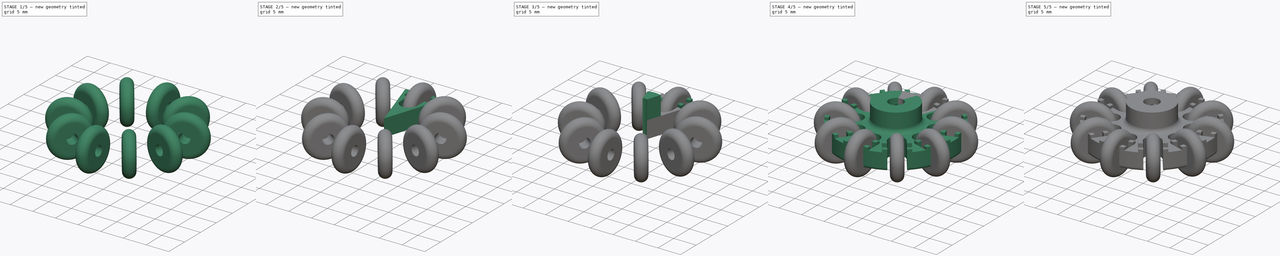
[diagram: build sequence overview — one tinted view per stage of 5, left to right]
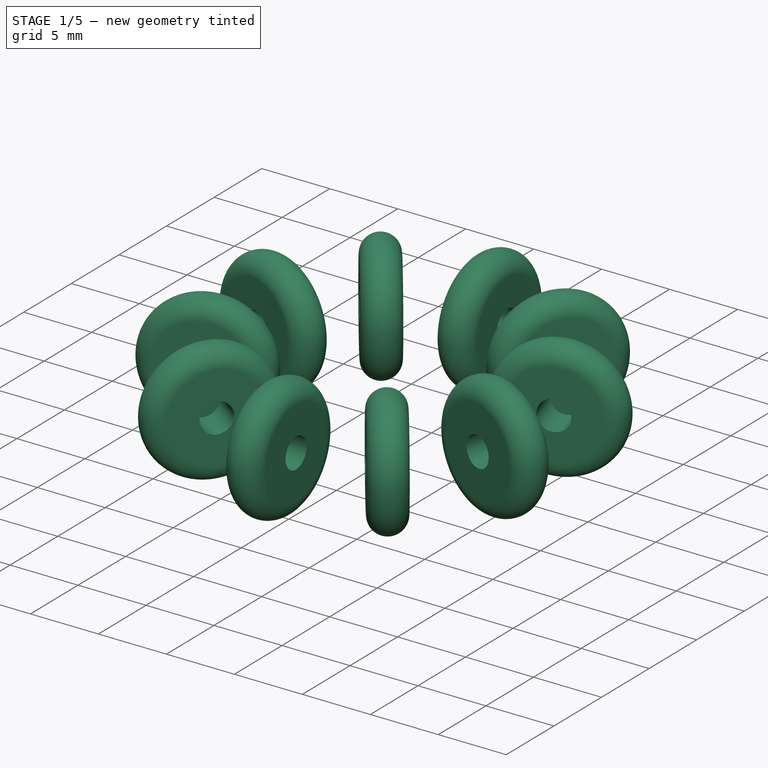
[diagram: stage 1 of 5 — iso view after this stage's code; geometry added in this stage tinted green]
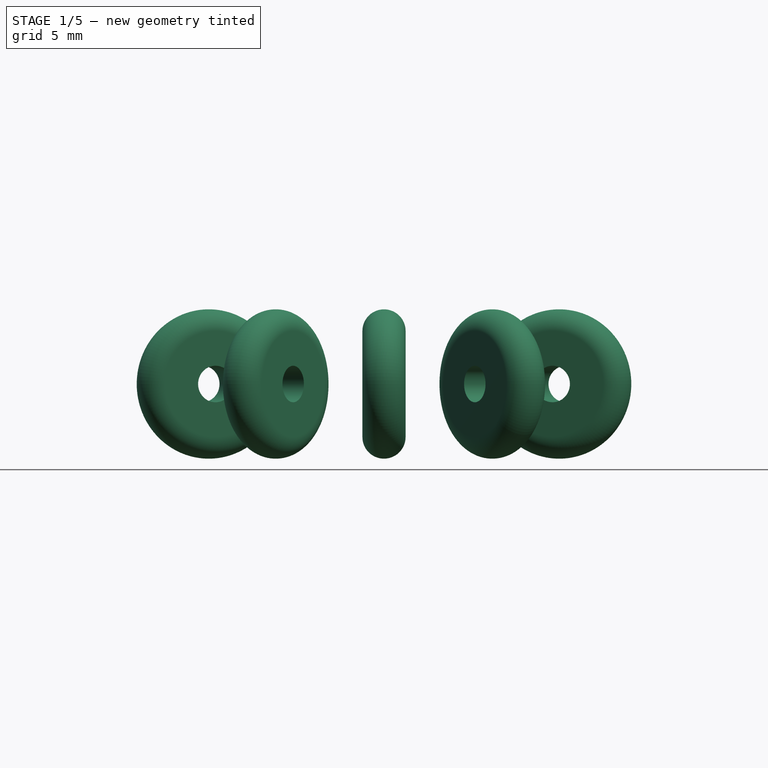
[diagram: stage 1 of 5 — front view after this stage's code; geometry added in this stage tinted green]
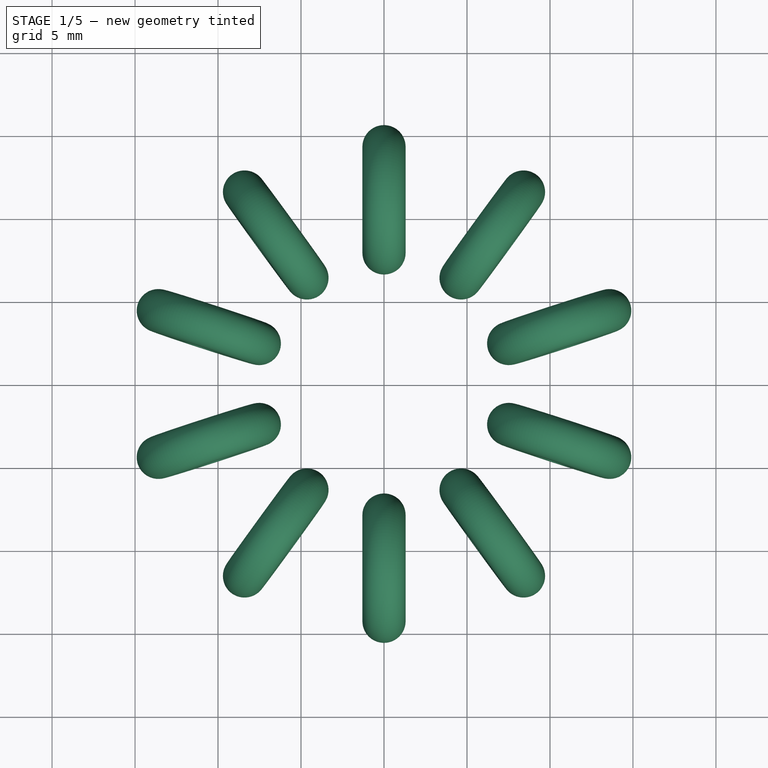
[diagram: stage 1 of 5 — top view after this stage's code; geometry added in this stage tinted green]
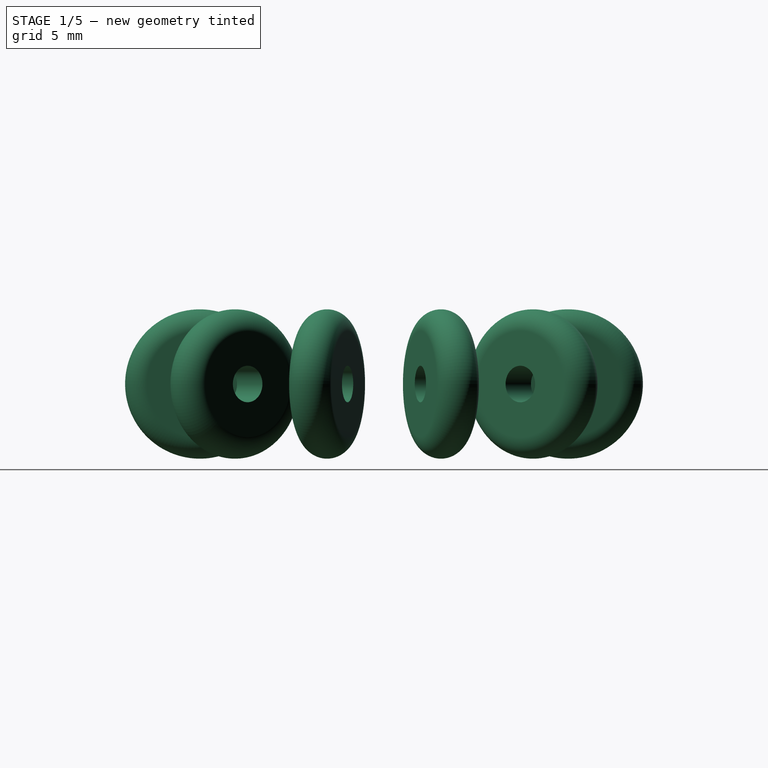
[diagram: stage 1 of 5 — right view after this stage's code; geometry added in this stage tinted green]
FCSTD DOCUMENT  (FreeCAD 1.0R39319 (Git))
Label: paolo_omniwheel_new_25-11-20
License: All rights reserved
LicenseURL: http://en.wikipedia.org/wiki/All_rights_reserved
objects: Sketcher::SketchObject×12, PartDesign::Pocket×5, PartDesign::ShapeBinder×3, PartDesign::Pad×3, PartDesign::Body×3, PartDesign::Revolution×2, PartDesign::Fillet×2, Spreadsheet::Sheet×1, PartDesign::Groove×1, PartDesign::PolarPattern×1, PartDesign::Plane×1, PartDesign::Chamfer×1, App::Part×1, Part::FeaturePython×1
note: 76 computed .brp shape members not serialized (recipe doc carries the construction recipe); baked Part::Feature solids carry a one-line shape summary decoded from their .brp

FEATURE [PartDesign::Body] Body  label="Spicchio ruota"
  AllowCompound = false
  Group = -> [ShapeBinder,Sketch001,Pad,Sketch004,Pocket001,Sketch005,Groove,Sketch013,Pad003,Sketch014,Pocket002,Sketch016,Pad004,Fillet,PolarPattern,DatumPlane,Sketch017,Pocket003,Fillet001,Chamfer]
  Origin = -> Origin001
  Tip = -> Chamfer
FEATURE [App::Part] Part
  Group = -> [Sketch,Body,Body001]
  Origin = -> Origin
FEATURE [PartDesign::ShapeBinder] ShapeBinder002
  Support = -> [Sketch]
  TraceSupport = false
FEATURE [Sketcher::SketchObject] Sketch018
  ArcFitTolerance = 1e-06
  AttachmentSupport = -> [XY_Plane003]
  ExternalGeometry = -> [ShapeBinder002]
  FullyConstrained = true
  MakeInternals = false
  MapMode = 5
  sketch-geometry (4):
    g0: LineSegment StartX=-1.3 StartY=14.2992 StartZ=0 EndX=-1.3 EndY=11.0992 EndZ=0
    g1: LineSegment StartX=-1.3 StartY=11.0992 StartZ=0 EndX=1.3 EndY=11.0992 EndZ=0
    g2: LineSegment StartX=1.3 StartY=11.0992 StartZ=0 EndX=1.3 EndY=14.2992 EndZ=0
    g3: ArcOfCircle CenterX=-4.323e-13 CenterY=14.2992 CenterZ=0 NormalX=0 NormalY=0 NormalZ=1 AngleXU=0 Radius=1.3 StartAngle=-1.217e-13 EndAngle=3.14159
  constraints (10):
    c: Tangent(g-6,g0) = -1.5708
    c: Coincident(g0,g1)
    c: PointOnObject(g1,g-5)
    c: Horizontal(g1)
    c: Coincident(g1,g2)
    c: Coincident(g2,g-6)
    c: Vertical(g2)
    c: Coincident(g3,g-6)
    c: Coincident(g3,g0)
    c: Coincident(g3,g2)
FEATURE [PartDesign::Revolution] Revolution001
  Angle = 360
  Angle2 = 60
  Axis = (1,0,0)
  Base = (-1.3,11.0992,0)
  Profile = -> Sketch018
  ReferenceAxis = -> Sketch018 [Edge2]
  Suppressed = false
  Type = 0
FEATURE [Sketcher::SketchObject] Sketch019
  ArcFitTolerance = 1e-06
  AttachmentSupport = -> [Revolution001]
  ExternalGeometry = -> [Revolution001]
  FullyConstrained = true
  MakeInternals = false
  MapMode = 5
  Placement = pos=(-1.3,0,0) rot=(0.57735,-0.57735,-0.57735;2.0944rad)
  expr: Constraints[1] = Spreadsheet.diametro_foro_ruotine
  sketch-geometry (1):
    g0: Circle CenterX=-11.0992 CenterY=0 CenterZ=0 NormalX=0 NormalY=0 NormalZ=1 AngleXU=0 Radius=1.1
  constraints (2):
    c: Coincident(g0,g-3)
    c: Diameter(g0) = 2.2
FEATURE [PartDesign::Pocket] Pocket004  label="UnaRuotina"
  BaseFeature = -> Revolution001
  Direction = (1,0,0)
  Length = 5
  Length2 = 5
  Profile = -> Sketch019
  ReferenceAxis = -> Sketch019 [N_Axis]
  Suppressed = false
  Type = 1
FEATURE [PartDesign::Body] Body002  label="nocciolina001"
  AllowCompound = false
  Group = -> [ShapeBinder002,Sketch018,Revolution001,Sketch019,Pocket004]
  Origin = -> Origin003
  Tip = -> Pocket004
FEATURE [Part::FeaturePython] Array  # Draft array (typed FeaturePython)
  Angle = 360
  ArrayType = 1
  Axis = (0,0,1)
  Base = -> Pocket004
  Center = (0,0,0)
  Count = 10
  Fuse = true
  IntervalAxis = (0,0,0)
  IntervalX = (50,0,0)
  IntervalY = (0,50,0)
  IntervalZ = (0,0,50)
  NumberCircles = 3
  NumberPolar = 10
  NumberX = 2
  NumberY = 2
  NumberZ = 1
  RadialDistance = 50
  Symmetry = 1
  TangentialDistance = 25
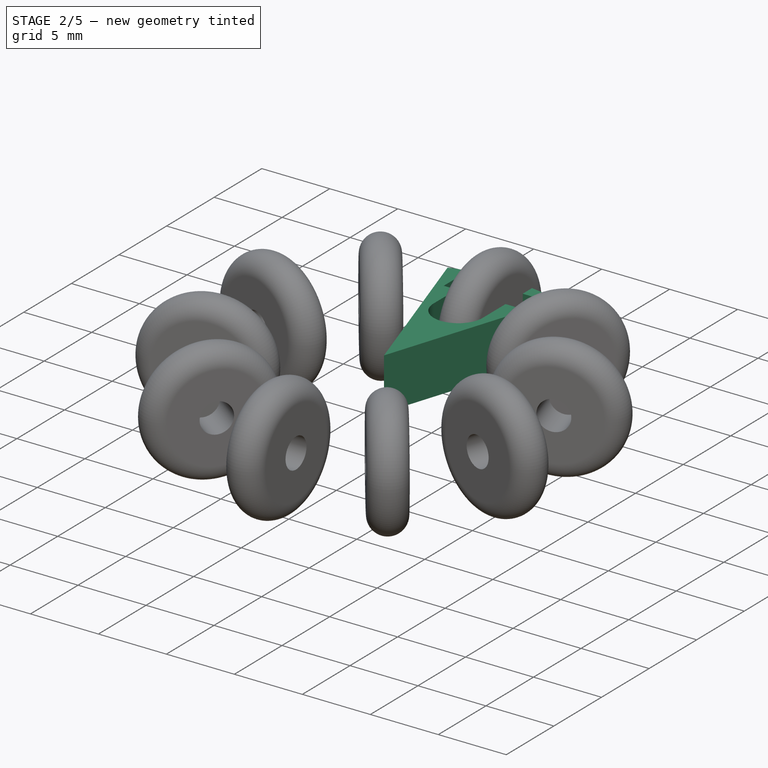
[diagram: stage 2 of 5 — iso view after this stage's code; geometry added in this stage tinted green]
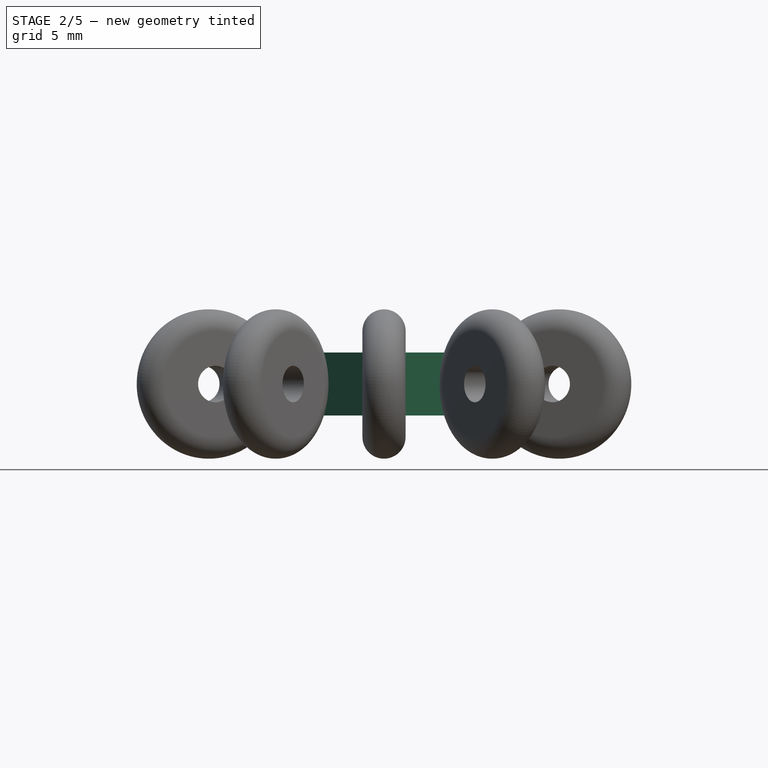
[diagram: stage 2 of 5 — front view after this stage's code; geometry added in this stage tinted green]
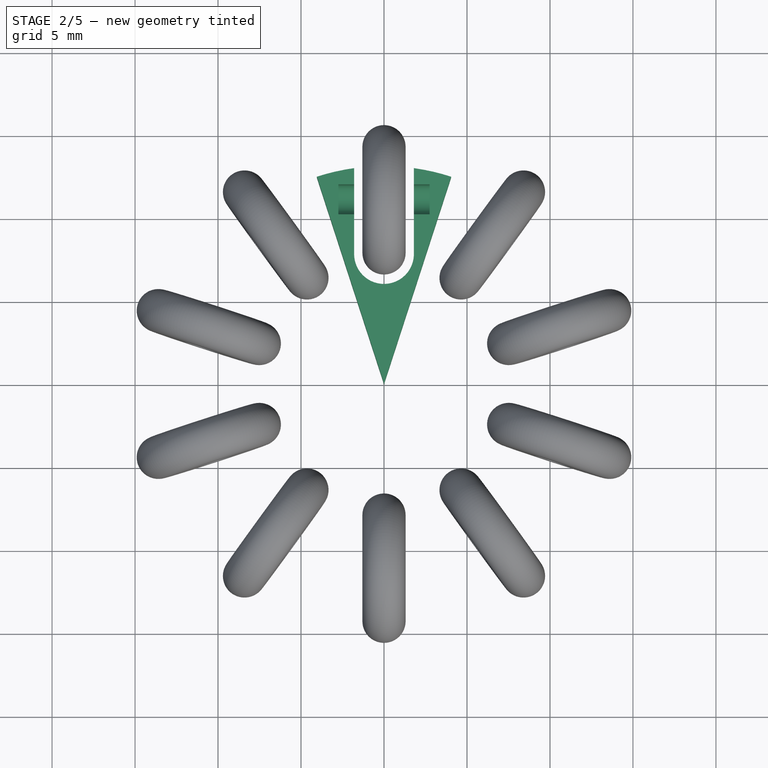
[diagram: stage 2 of 5 — top view after this stage's code; geometry added in this stage tinted green]
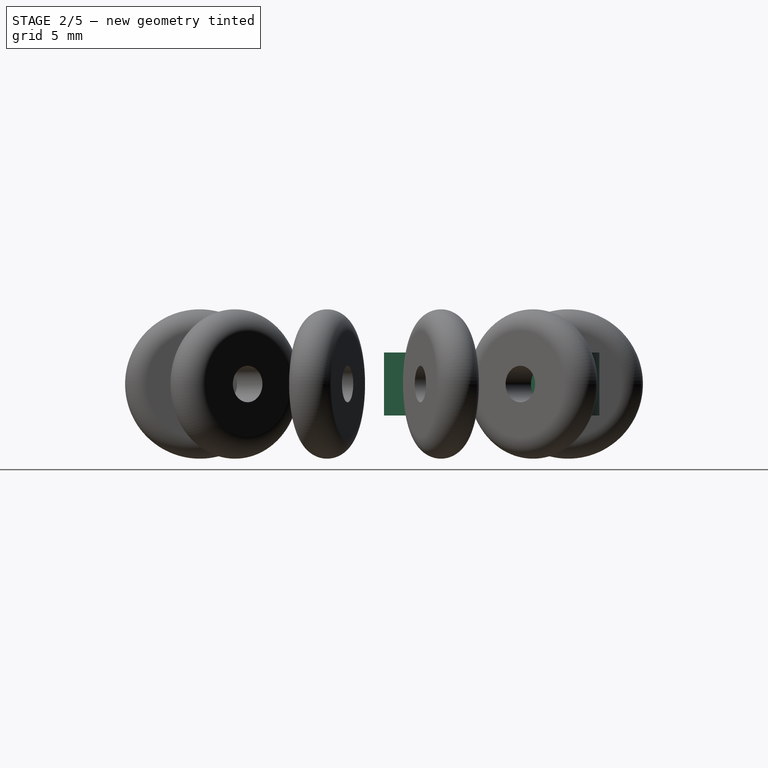
[diagram: stage 2 of 5 — right view after this stage's code; geometry added in this stage tinted green]
FEATURE [Spreadsheet::Sheet] Spreadsheet
  cells = A1='num_ruote; B1(num_ruote)=10; A3='spessore ruote; B3(spessore_ruotine)=2.6; A4='diametro_ruotine; B4(diametro_ruotine)=9; A5='diametro_foro_routine; B5(diametro_foro_ruotine)=2.2; A7='diametro mozzo ruotine per lo scasso; B7(diam_mozzo_ruotine)=1.8; A8='diametro_foro_mozzo; B8(diametro_foro_mozzo)=3.2; A9='spessore_cerchione; B9(spessore_cerchio)=3.8; C9=3.8; A10='spessore_attacco_mozzo; B10(spessore_attacco_mozzo)=4.2; A12='diametro_vitina; B12(diametro_vitina)=1.9
FEATURE [Sketcher::SketchObject] Sketch  label="MasterSketch"
  ArcFitTolerance = 1e-06
  AttacherType = Attacher::AttachEngine3D
  AttachmentSupport = -> [XY_Plane]
  FullyConstrained = false
  MakeInternals = false
  MapMode = 5
  expr: Constraints[10] = Spreadsheet.spessore_ruotine + 1
  expr: Constraints[39] = Spreadsheet.diametro_ruotine - Spreadsheet.spessore_ruotine
  expr: Constraints[40] = Spreadsheet.spessore_ruotine
  expr: Constraints[42] = Spreadsheet.diam_mozzo_ruotine
  expr: Constraints[8] = 360 / Spreadsheet.num_ruote
  sketch-geometry (31):
    g0: LineSegment StartX=0 StartY=0 StartZ=0 EndX=4.04812 EndY=12.4588 EndZ=0
    g1: LineSegment StartX=0 StartY=0 StartZ=0 EndX=-4.04812 EndY=12.4588 EndZ=0
    g2: LineSegment StartX=-1.8 StartY=12.9757 StartZ=0 EndX=-1.8 EndY=7.79892 EndZ=0
    g3: LineSegment StartX=1.8 StartY=12.9757 StartZ=0 EndX=1.8 EndY=7.79892 EndZ=0
    g4: ArcOfCircle CenterX=0 CenterY=0 CenterZ=0 NormalX=0 NormalY=0 NormalZ=1 AngleXU=0 Radius=13.1 StartAngle=1.70864 EndAngle=1.88496
    g5: ArcOfCircle CenterX=0 CenterY=0 CenterZ=0 NormalX=0 NormalY=0 NormalZ=1 AngleXU=0 Radius=13.1 StartAngle=1.25664 EndAngle=1.43296
    g6: ArcOfCircle CenterX=0 CenterY=7.79892 CenterZ=0 NormalX=0 NormalY=0 NormalZ=1 AngleXU=0 Radius=1.8 StartAngle=3.14159 EndAngle=6.28319
    g7: ArcOfCircle CenterX=0 CenterY=14.2992 CenterZ=0 NormalX=0 NormalY=0 NormalZ=1 AngleXU=0 Radius=1.3 StartAngle=-9e-16 EndAngle=3.14159
    g8: ArcOfCircle CenterX=0 CenterY=7.89922 CenterZ=0 NormalX=0 NormalY=0 NormalZ=1 AngleXU=0 Radius=1.3 StartAngle=3.14159 EndAngle=6.28319
    g9: LineSegment StartX=1.3 StartY=14.2992 StartZ=0 EndX=1.3 EndY=7.89922 EndZ=0
    g10: LineSegment StartX=-1.3 StartY=14.2992 StartZ=0 EndX=-1.3 EndY=7.89922 EndZ=0
    g11: GeomPoint [constr] X=0 Y=11.0992 Z=0
    g12: LineSegment [constr] StartX=0 StartY=14.2992 StartZ=0 EndX=0 EndY=11.0992 EndZ=0
    g13: LineSegment [constr] StartX=0 StartY=11.0992 StartZ=0 EndX=0 EndY=7.89922 EndZ=0
    g14: LineSegment StartX=-2.75 StartY=11.9992 StartZ=0 EndX=-2.75 EndY=10.1992 EndZ=0
    g15: LineSegment StartX=-2.75 StartY=10.1992 StartZ=0 EndX=2.75 EndY=10.1992 EndZ=0
    g16: LineSegment StartX=2.75 StartY=10.1992 StartZ=0 EndX=2.75 EndY=11.9992 EndZ=0
    g17: LineSegment StartX=2.75 StartY=11.9992 StartZ=0 EndX=-2.75 EndY=11.9992 EndZ=0
    g18: LineSegment [constr] StartX=-12.8784 StartY=11.0992 StartZ=0 EndX=12.8784 EndY=11.0992 EndZ=0
    g19: GeomPoint [constr] X=0 Y=11.0992 Z=0
    g20: LineSegment StartX=-2.75 StartY=11.9992 StartZ=0 EndX=-2.75 EndY=11.0992 EndZ=0
    g21: LineSegment StartX=-2.75 StartY=11.0992 StartZ=0 EndX=2.75 EndY=11.0992 EndZ=0
    g22: LineSegment StartX=2.75 StartY=11.0992 StartZ=0 EndX=2.75 EndY=11.9992 EndZ=0
    g23: LineSegment StartX=2.75 StartY=11.9992 StartZ=0 EndX=-2.75 EndY=11.9992 EndZ=0
    g24: GeomPoint [constr] X=2.9073e-06 Y=15.5992 Z=0
    g25: LineSegment [constr] StartX=-11.1081 StartY=12.0569 StartZ=0 EndX=1.64286 EndY=16.1999 EndZ=0
    g26: LineSegment [constr] StartX=-2.75 StartY=10.1992 StartZ=0 EndX=-3.57658 EndY=9.93065 EndZ=0
    g27: GeomPoint [constr] X=-3.26008 Y=10.0335 Z=0
    g28: LineSegment [constr] StartX=-2.30208 StartY=9.05907 StartZ=0 EndX=-1.39598 EndY=6.2704 EndZ=0
    g29: GeomPoint [constr] X=-2.88222 Y=8.87057 Z=0
    g30: LineSegment [constr] StartX=-3.07673 StartY=8.80737 StartZ=0 EndX=-1.53162 EndY=9.30941 EndZ=0
  constraints (71):
    c: Coincident(g0,g-1)
    c: Coincident(g1,g0)
    c: Vertical(g2)
    c: Coincident(g4,g0)
    c: Coincident(g4,g2)
    c: Coincident(g4,g1)
    c: Symmetric(g1,g0,g-2)
    c: Vertical(g3)
    c: Angle(g0,g1) = 0.628319
    c: Distance(g1,g0) = 13.1
    c: DistanceX(g2,g3) = 3.6
    c: Coincident(g5,g0)
    c: Coincident(g5,g0)
    c: Coincident(g5,g3)
    c: PointOnObject(g6,g-2)
    c: Tangent(g6,g3) = 1.5708
    c: Tangent(g7,g9) = 1.5708
    c: Tangent(g7,g10) = -1.5708
    c: Tangent(g8,g9) = 1.5708
    c: Tangent(g8,g10) = -1.5708
    c: Equal(g7,g8)
    c: Coincident(g12,g7)
    c: Coincident(g12,g11)
    c: Vertical(g12)
    c: Coincident(g13,g11)
    c: Coincident(g13,g8)
    c: Vertical(g13)
    c: Equal(g12,g13)
    c: Coincident(g14,g15)
    c: Coincident(g15,g16)
    c: Coincident(g16,g17)
    c: Coincident(g17,g14)
    c: Vertical(g14)
    c: Vertical(g16)
    c: Horizontal(g15)
    c: Symmetric(g16,g15,g18)
    c: Symmetric(g18,g18,g19)
    c: Coincident(g11,g19)
    c: Symmetric(g16,g14,g12)
    c: DistanceY(g8,g7) = 6.4
    c: Distance(g7,g7) = 2.6
    c: PointOnObject(g7,g-2)  'ruota_su_asse_y'
    c: DistanceY(g15,g16) = 1.8
    c: Coincident(g20,g21)
    c: Coincident(g21,g22)
    c: Coincident(g22,g23)
    c: Coincident(g23,g20)
    c: Vertical(g20)
    c: Vertical(g22)
    c: Horizontal(g21)
    c: Coincident(g20,g14)
    c: PointOnObject(g21,g18)
    c: Coincident(g22,g16)
    c: PointOnObject(g24,g7)
    c: DistanceY(g-1,g24) = 15.5992
    c: Perpendicular(g1,g25)
    c: Tangent(g25,g7)
    c: PointOnObject(g27,g26)
    c: PointOnObject(g27,g1)
    c: Perpendicular(g26,g1)
    c: Coincident(g26,g14)
    c: Distance(g27,g14) = 0.536328
    c: Parallel(g1,g28)
    c: Tangent(g28,g6)
    c: Tangent(g6,g2) = -1.5708
    c: PointOnObject(g29,g1)
    c: PointOnObject(g29,g30)
    c: PointOnObject(g28,g30)
    c: Perpendicular(g28,g30)
    c: Distance(g29,g28) = 0.61
    c: Distance(g14,g16) = 5.5
FEATURE [PartDesign::ShapeBinder] ShapeBinder
  Support = -> [Sketch]
  TraceSupport = false
FEATURE [Sketcher::SketchObject] Sketch001
  ArcFitTolerance = 1e-06
  AttachmentSupport = -> [XY_Plane001]
  ExternalGeometry = -> [ShapeBinder]
  FullyConstrained = true
  MakeInternals = false
  MapMode = 5
  sketch-geometry (7):
    g0: ArcOfCircle CenterX=1.6e-14 CenterY=9.95e-14 CenterZ=0 NormalX=0 NormalY=0 NormalZ=1 AngleXU=0 Radius=13.1 StartAngle=1.70864 EndAngle=1.88496
    g1: ArcOfCircle CenterX=1.6e-14 CenterY=9.95e-14 CenterZ=0 NormalX=0 NormalY=0 NormalZ=1 AngleXU=0 Radius=13.1 StartAngle=1.25664 EndAngle=1.43296
    g2: ArcOfCircle CenterX=1.84e-14 CenterY=7.79892 CenterZ=0 NormalX=0 NormalY=0 NormalZ=1 AngleXU=0 Radius=1.8 StartAngle=3.14159 EndAngle=6.28319
    g3: LineSegment StartX=-1.8 StartY=12.9757 StartZ=0 EndX=-1.8 EndY=7.79892 EndZ=0
    g4: LineSegment StartX=1.8 StartY=12.9757 StartZ=0 EndX=1.8 EndY=7.79892 EndZ=0
    g5: LineSegment StartX=4.04812 StartY=12.4588 StartZ=0 EndX=1.6e-14 EndY=9.95e-14 EndZ=0
    g6: LineSegment StartX=-4.04812 StartY=12.4588 StartZ=0 EndX=1.6e-14 EndY=9.95e-14 EndZ=0
  constraints (17):
    c: Coincident(g0,g1)
    c: Coincident(g1,g-5)
    c: Coincident(g0,g-6)
    c: Coincident(g0,g-1)
    c: Coincident(g2,g-7)
    c: Coincident(g2,g-7)
    c: Coincident(g3,g0)
    c: Coincident(g3,g2)
    c: Coincident(g4,g1)
    c: Coincident(g4,g2)
    c: Coincident(g5,g1)
    c: Coincident(g5,g0)
    c: Coincident(g6,g0)
    c: Coincident(g6,g0)
    c: Vertical(g3)
    c: Vertical(g4)
    c: PointOnObject(g2,g-4)
FEATURE [PartDesign::Pad] Pad
  Direction = (0,0,1)
  Length = 3.8
  Length2 = 10
  Midplane = true
  Profile = -> Sketch001
  ReferenceAxis = -> Sketch001 [N_Axis]
  Suppressed = false
  Type = 0
  expr: Length = Spreadsheet.spessore_cerchio
FEATURE [PartDesign::Body] Body001  label="nocciolina"
  AllowCompound = false
  Group = -> [ShapeBinder001,Sketch002,Revolution,Sketch003,Pocket]
  Origin = -> Origin002
  Tip = -> Pocket
FEATURE [Sketcher::SketchObject] Sketch004
  ArcFitTolerance = 1e-06
  AttachmentSupport = -> [XY_Plane001]
  ExternalGeometry = -> [ShapeBinder]
  FullyConstrained = true
  MakeInternals = false
  MapMode = 5
  sketch-geometry (4):
    g0: LineSegment StartX=-2.75 StartY=11.9992 StartZ=0 EndX=-2.75 EndY=10.1992 EndZ=0
    g1: LineSegment StartX=-2.75 StartY=10.1992 StartZ=0 EndX=2.75 EndY=10.1992 EndZ=0
    g2: LineSegment StartX=2.75 StartY=10.1992 StartZ=0 EndX=2.75 EndY=11.9992 EndZ=0
    g3: LineSegment StartX=2.75 StartY=11.9992 StartZ=0 EndX=-2.75 EndY=11.9992 EndZ=0
  constraints (10):
    c: Coincident(g0,g1)
    c: Coincident(g1,g2)
    c: Coincident(g2,g3)
    c: Coincident(g3,g0)
    c: Vertical(g0)
    c: Vertical(g2)
    c: Horizontal(g1)
    c: Horizontal(g3)
    c: Coincident(g0,g-3)
    c: Coincident(g1,g-4)
FEATURE [PartDesign::Pocket] Pocket001  label="scasso_mozzo_superiore"
  BaseFeature = -> Pad
  Direction = (0,0,-1)
  Length = 0
  Length2 = 5
  Profile = -> Sketch004
  ReferenceAxis = -> Sketch004 [N_Axis]
  Suppressed = false
  Type = 3
  UpToFace = -> Pad [Face9]
FEATURE [Sketcher::SketchObject] Sketch005
  ArcFitTolerance = 1e-06
  AttachmentSupport = -> [XY_Plane001]
  ExternalGeometry = -> [ShapeBinder]
  FullyConstrained = true
  MakeInternals = false
  MapMode = 5
  sketch-geometry (4):
    g0: LineSegment StartX=-2.75 StartY=11.9992 StartZ=0 EndX=-2.75 EndY=11.0992 EndZ=0
    g1: LineSegment StartX=-2.75 StartY=11.0992 StartZ=0 EndX=2.75 EndY=11.0992 EndZ=0
    g2: LineSegment StartX=2.75 StartY=11.0992 StartZ=0 EndX=2.75 EndY=11.9992 EndZ=0
    g3: LineSegment StartX=2.75 StartY=11.9992 StartZ=0 EndX=-2.75 EndY=11.9992 EndZ=0
  constraints (10):
    c: Coincident(g0,g1)
    c: Coincident(g1,g2)
    c: Coincident(g2,g3)
    c: Coincident(g3,g0)
    c: Vertical(g0)
    c: Vertical(g2)
    c: Horizontal(g1)
    c: Horizontal(g3)
    c: Coincident(g0,g-3)
    c: Coincident(g1,g-4)
FEATURE [PartDesign::Groove] Groove  label="spicchio con scasso completo"
  Angle = 180
  Angle2 = 60
  Axis = (1,0,0)
  Base = (-2.75,11.0992,0)
  BaseFeature = -> Pocket001
  Profile = -> Sketch005
  ReferenceAxis = -> Sketch005 [Edge2]
  Reversed = true
  Suppressed = false
  Type = 0
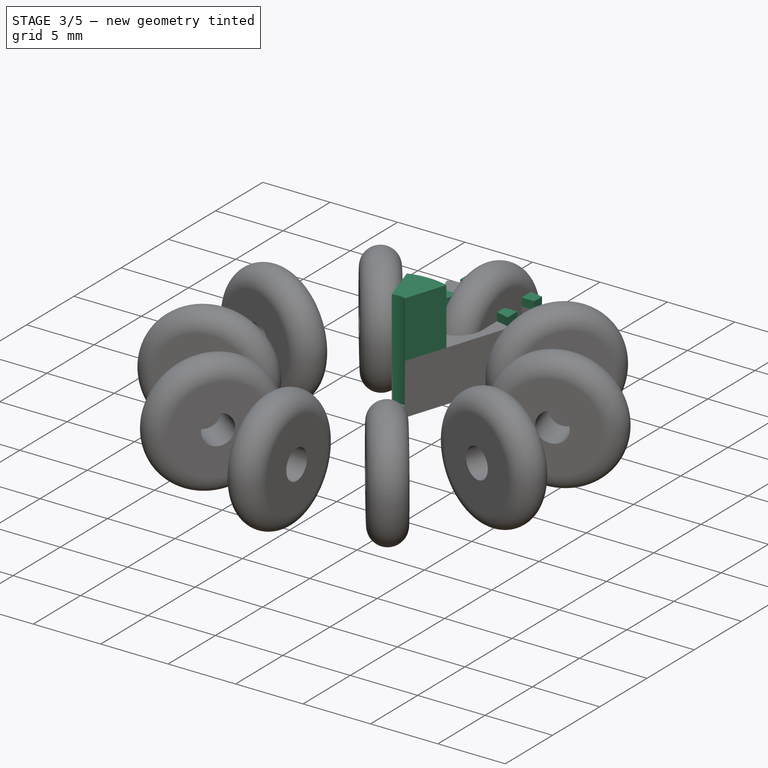
[diagram: stage 3 of 5 — iso view after this stage's code; geometry added in this stage tinted green]
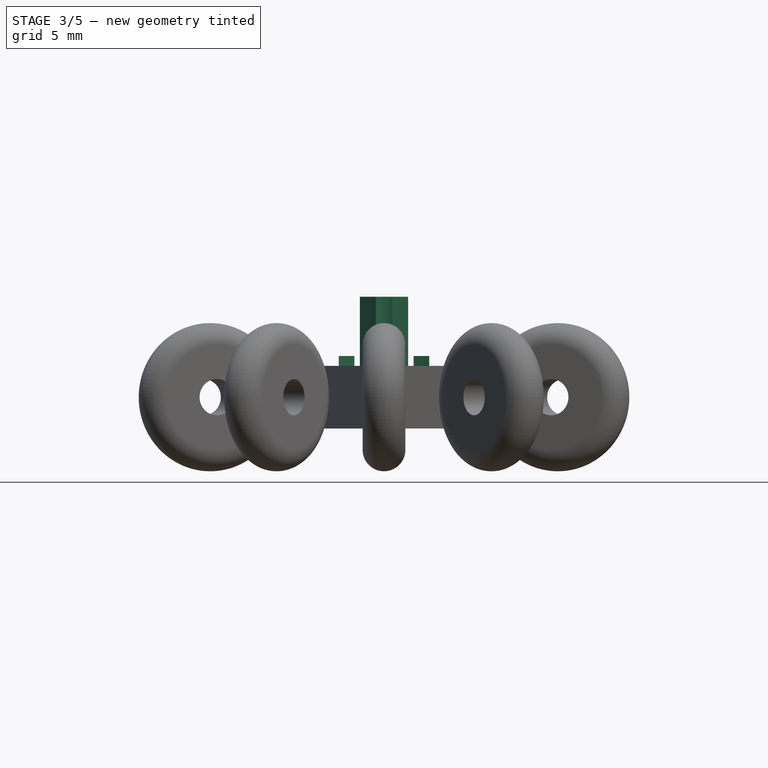
[diagram: stage 3 of 5 — front view after this stage's code; geometry added in this stage tinted green]
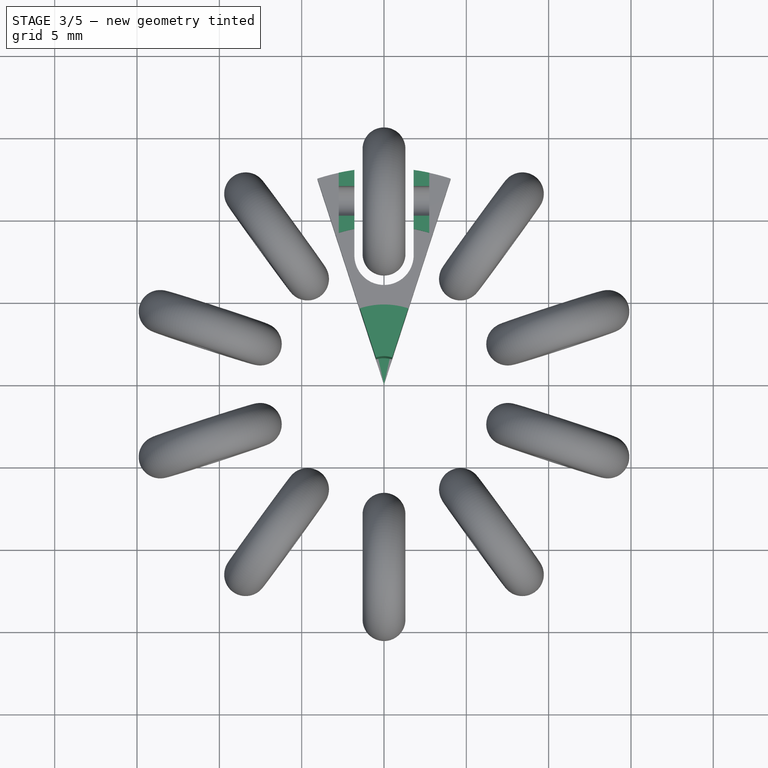
[diagram: stage 3 of 5 — top view after this stage's code; geometry added in this stage tinted green]
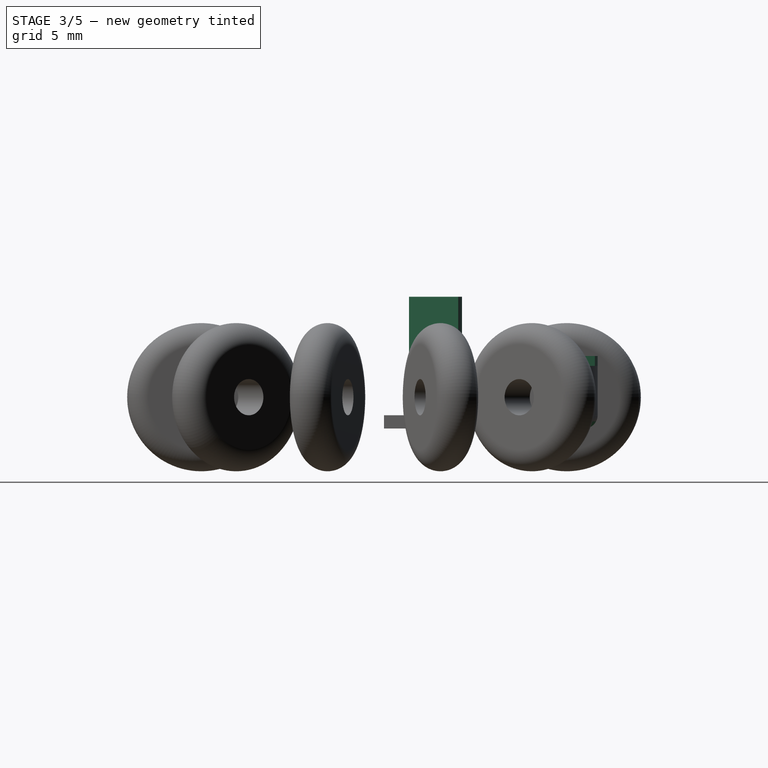
[diagram: stage 3 of 5 — right view after this stage's code; geometry added in this stage tinted green]
FEATURE [Sketcher::SketchObject] Sketch013
  ArcFitTolerance = 1e-06
  AttachmentSupport = -> [Groove]
  ExternalGeometry = -> [Groove]
  FullyConstrained = true
  MakeInternals = false
  MapMode = 5
  Placement = pos=(0,0,1.9) rot=(0,0,1;0rad)
  sketch-geometry (3):
    g0: ArcOfCircle CenterX=-1e-16 CenterY=1e-16 CenterZ=0 NormalX=0 NormalY=0 NormalZ=1 AngleXU=0 Radius=4.74 StartAngle=1.25664 EndAngle=1.88496
    g1: LineSegment StartX=-1.46474 StartY=4.50801 StartZ=0 EndX=0 EndY=0 EndZ=0
    g2: LineSegment StartX=-1e-16 StartY=1e-16 StartZ=0 EndX=1.46474 EndY=4.50801 EndZ=0
  constraints (8):
    c: Coincident(g0,g-1)
    c: PointOnObject(g0,g-3)
    c: PointOnObject(g0,g-4)
    c: Diameter(g0) = 9.48
    c: Coincident(g1,g0)
    c: Coincident(g1,g0)
    c: Coincident(g2,g0)
    c: Coincident(g2,g0)
FEATURE [PartDesign::Pad] Pad003
  BaseFeature = -> Groove
  Direction = (0,0,1)
  Length = 4.2
  Length2 = 10
  Profile = -> Sketch013
  ReferenceAxis = -> Sketch013 [N_Axis]
  Suppressed = false
  Type = 0
  expr: Length = Spreadsheet.spessore_attacco_mozzo
FEATURE [Sketcher::SketchObject] Sketch014  label="foro_mozzo"
  ArcFitTolerance = 1e-06
  AttachmentSupport = -> [Pad003]
  FullyConstrained = true
  MakeInternals = false
  MapMode = 5
  Placement = pos=(0,0,6.1) rot=(0,0,1;0rad)
  expr: Constraints[1] = Spreadsheet.diametro_foro_mozzo
  sketch-geometry (1):
    g0: Circle CenterX=0 CenterY=0 CenterZ=0 NormalX=0 NormalY=0 NormalZ=1 AngleXU=0 Radius=1.6
  constraints (2):
    c: Coincident(g0,g-1)
    c: Diameter(g0) = 3.2
FEATURE [PartDesign::Pocket] Pocket002  label="foro_mozzo001"
  BaseFeature = -> Pad003
  Direction = (0,0,-1)
  Length = 7.2
  Length2 = 5
  Profile = -> Sketch014
  ReferenceAxis = -> Sketch014 [N_Axis]
  Suppressed = false
  Type = 0
  expr: Length = Spreadsheet.spessore_cerchio + Spreadsheet.spessore_attacco_mozzo - 0.8
FEATURE [Sketcher::SketchObject] Sketch016
  ArcFitTolerance = 1e-06
  AttachmentSupport = -> [Pocket002]
  ExternalGeometry = -> [Pocket002]
  FullyConstrained = true
  MakeInternals = false
  MapMode = 5
  Placement = pos=(0,0,1.9) rot=(0,0,1;0rad)
  sketch-geometry (16):
    g0: ArcOfCircle CenterX=0 CenterY=0 CenterZ=0 NormalX=0 NormalY=0 NormalZ=1 AngleXU=0 Radius=9.5613 StartAngle=1.76019 EndAngle=1.86253
    g1: ArcOfCircle CenterX=0 CenterY=0 CenterZ=0 NormalX=0 NormalY=0 NormalZ=1 AngleXU=0 Radius=9.5613 StartAngle=1.27906 EndAngle=1.38141
    g2: LineSegment StartX=-2.75 StartY=10.1992 StartZ=0 EndX=-1.8 EndY=10.1992 EndZ=0
    g3: LineSegment StartX=-1.8 StartY=10.1992 StartZ=0 EndX=-1.8 EndY=9.39034 EndZ=0
    g4: LineSegment StartX=1.8 StartY=10.1992 StartZ=0 EndX=2.75 EndY=10.1992 EndZ=0
    g5: LineSegment StartX=1.8 StartY=10.1992 StartZ=0 EndX=1.8 EndY=9.39034 EndZ=0
    g6: ArcOfCircle CenterX=0 CenterY=0 CenterZ=0 NormalX=0 NormalY=0 NormalZ=1 AngleXU=0 Radius=13.1 StartAngle=1.70864 EndAngle=1.78229
    g7: ArcOfCircle CenterX=0 CenterY=0 CenterZ=0 NormalX=0 NormalY=0 NormalZ=1 AngleXU=0 Radius=13.1 StartAngle=1.3593 EndAngle=1.43296
    g8: LineSegment StartX=-1.8 StartY=12.9757 StartZ=0 EndX=-1.8 EndY=11.9992 EndZ=0
    g9: LineSegment StartX=-2.75 StartY=11.9992 StartZ=0 EndX=-1.8 EndY=11.9992 EndZ=0
    g10: LineSegment StartX=-2.75 StartY=11.9992 StartZ=0 EndX=-2.75 EndY=12.8081 EndZ=0
    g11: LineSegment StartX=2.75 StartY=12.8081 StartZ=0 EndX=2.75 EndY=11.9992 EndZ=0
    g12: LineSegment StartX=2.75 StartY=11.9992 StartZ=0 EndX=1.8 EndY=11.9992 EndZ=0
    g13: LineSegment StartX=1.8 StartY=11.9992 StartZ=0 EndX=1.8 EndY=12.9757 EndZ=0
    g14: LineSegment StartX=-2.75 StartY=10.1992 StartZ=0 EndX=-2.75 EndY=9.15729 EndZ=0
    g15: LineSegment StartX=2.75 StartY=9.15729 StartZ=0 EndX=2.75 EndY=10.1992 EndZ=0
  constraints (37):
    c: PointOnObject(g0,g-11)
    c: Coincident(g1,g0)
    c: Coincident(g2,g-11)
    c: Coincident(g3,g2)
    c: Coincident(g3,g0)
    c: Coincident(g4,g-12)
    c: Coincident(g5,g4)
    c: Coincident(g5,g1)
    c: Coincident(g0,g-1)
    c: Coincident(g6,g0)
    c: Coincident(g6,g-3)
    c: Coincident(g7,g0)
    c: Coincident(g7,g-4)
    c: Coincident(g8,g6)
    c: Coincident(g8,g-8)
    c: Coincident(g9,g-8)
    c: Coincident(g9,g8)
    c: Coincident(g10,g9)
    c: Coincident(g10,g6)
    c: Coincident(g11,g7)
    c: Coincident(g11,g-5)
    c: Coincident(g12,g11)
    c: Coincident(g12,g-5)
    c: Coincident(g13,g12)
    c: Coincident(g13,g7)
    c: Coincident(g14,g0)
    c: Coincident(g15,g1)
    c: Vertical(g11)
    c: Vertical(g10)
    c: Coincident(g2,g14)
    c: Coincident(g2,g-7)
    c: Coincident(g4,g-6)
    c: Coincident(g4,g15)
    c: Vertical(g14)
    c: Vertical(g15)
    c: Symmetric(g0,g1,g-2)
    c: Equal(g3,g10)
FEATURE [PartDesign::Pad] Pad004  label="salsatura"
  BaseFeature = -> Pocket002
  Direction = (0,0,1)
  Length = 0.6
  Length2 = 10
  Profile = -> Sketch016
  ReferenceAxis = -> Sketch016 [N_Axis]
  Suppressed = false
  Type = 0
FEATURE [PartDesign::Fillet] Fillet
  Base = -> Pad004 [Edge13,Edge10]
  BaseFeature = -> Pad004
  Radius = 0.8
  SupportTransform = false
  Suppressed = false
  UseAllEdges = false
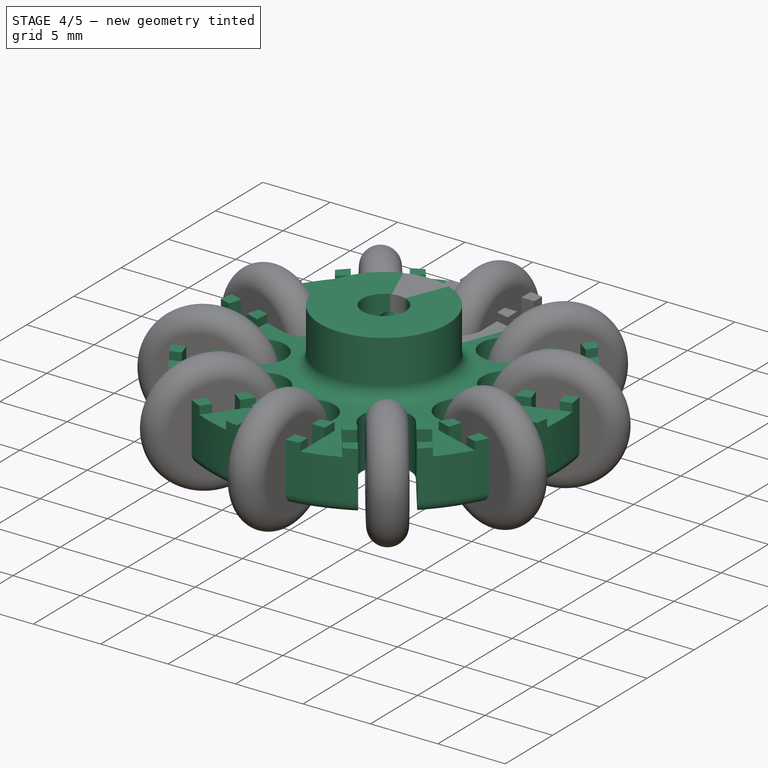
[diagram: stage 4 of 5 — iso view after this stage's code; geometry added in this stage tinted green]
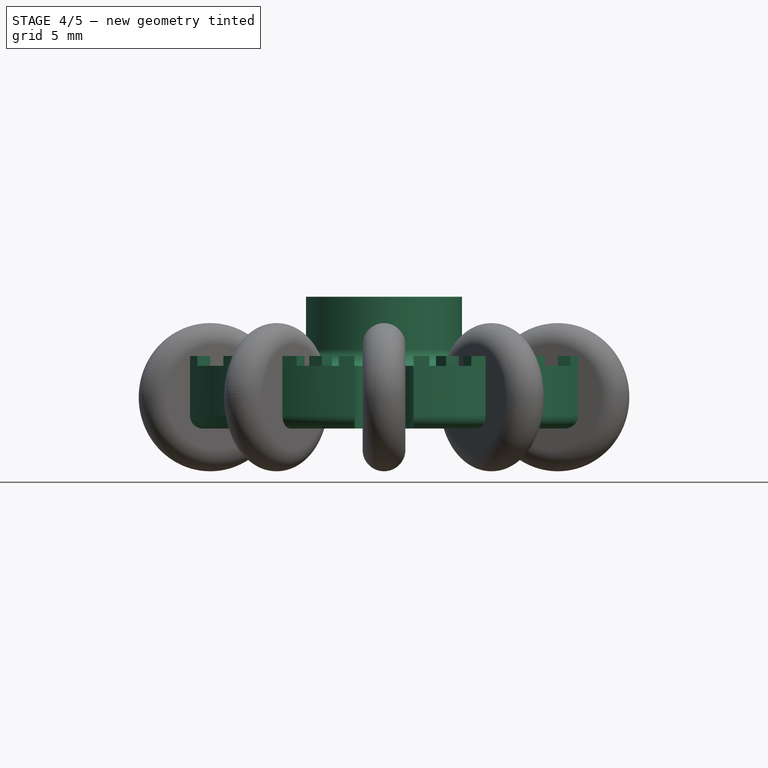
[diagram: stage 4 of 5 — front view after this stage's code; geometry added in this stage tinted green]
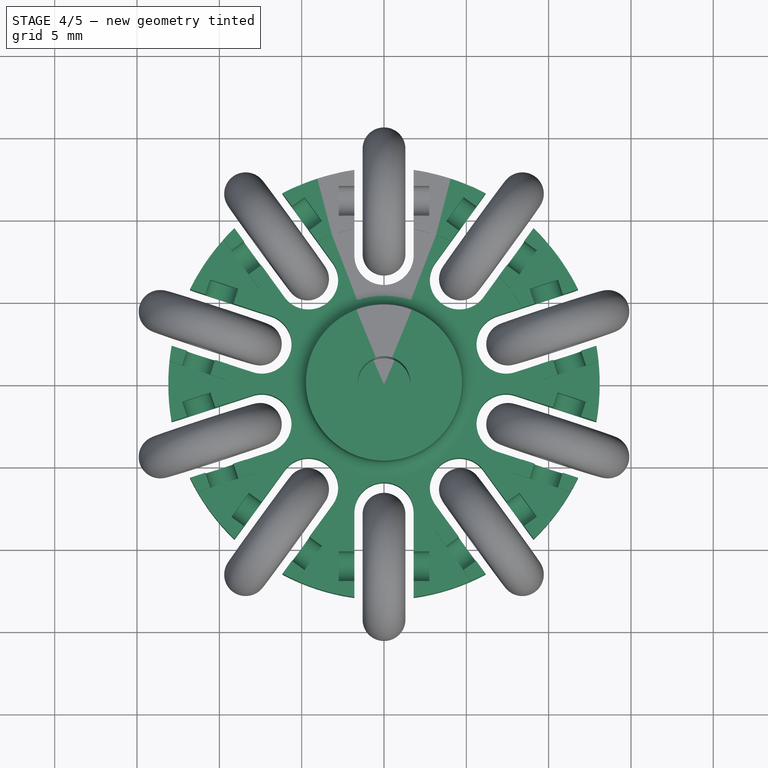
[diagram: stage 4 of 5 — top view after this stage's code; geometry added in this stage tinted green]
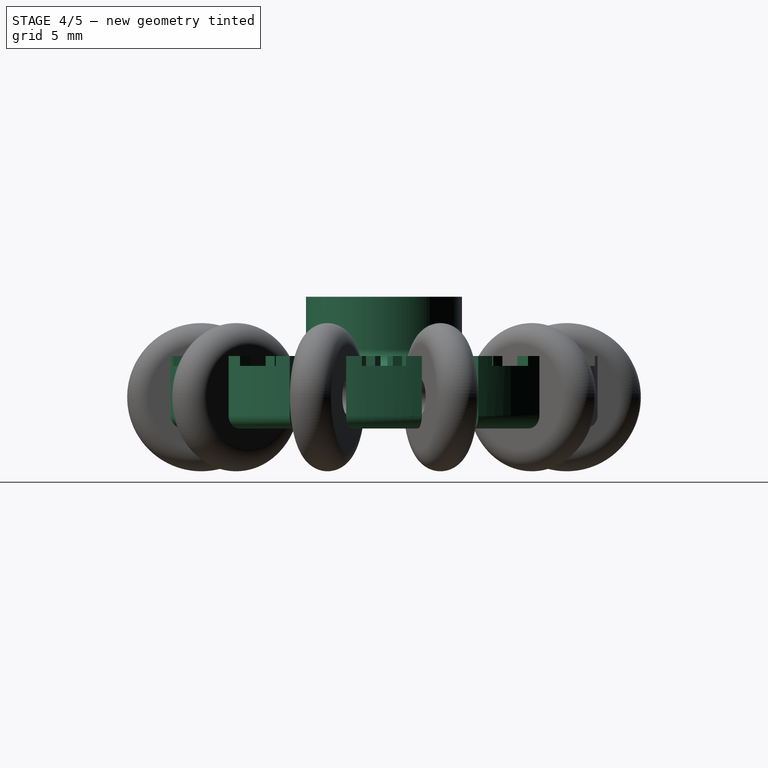
[diagram: stage 4 of 5 — right view after this stage's code; geometry added in this stage tinted green]
FEATURE [PartDesign::PolarPattern] PolarPattern
  Angle = 360
  Axis = -> Z_Axis001
  BaseFeature = -> Fillet
  Mode = 0
  Occurrences = 10
  Offset = 120
  Originals = -> [Fillet]
  Suppressed = false
  TransformMode = 1
FEATURE [PartDesign::Plane] DatumPlane
  AttachmentSupport = -> [PolarPattern]
  Length = 74.229
  MapMode = 7
  Placement = pos=(-1.46474,4.50801,1.9) rot=(-0.111299,0.702714,0.702714;3.36328rad)
  ResizeMode = 0
  Width = 61.2253
FEATURE [Sketcher::SketchObject] Sketch017
  ArcFitTolerance = 1e-06
  AttachmentSupport = -> [DatumPlane]
  ExternalGeometry = -> [PolarPattern]
  FullyConstrained = true
  MakeInternals = false
  MapMode = 5
  Placement = pos=(-1.46474,4.50801,1.9) rot=(-0.111299,0.702714,0.702714;3.36328rad)
  expr: Constraints[1] = Spreadsheet.diametro_vitina
  sketch-geometry (1):
    g0: Circle CenterX=-2e-15 CenterY=2.1 CenterZ=0 NormalX=0 NormalY=0 NormalZ=1 AngleXU=0 Radius=0.95
  constraints (2):
    c: Symmetric(g-3,g-3,g0)
    c: Diameter(g0) = 1.9
FEATURE [PartDesign::Pocket] Pocket003
  BaseFeature = -> PolarPattern
  Direction = (0.309017,-0.951057,1e-16)
  Length = 5
  Length2 = 5
  Profile = -> Sketch017
  ReferenceAxis = -> Sketch017 [N_Axis]
  Suppressed = false
  Type = 0
  expr: Length = 5 mm
FEATURE [PartDesign::Fillet] Fillet001
  Base = -> Pocket003 [Edge35]
  BaseFeature = -> Pocket003
  Radius = 1
  SupportTransform = false
  Suppressed = false
  UseAllEdges = false
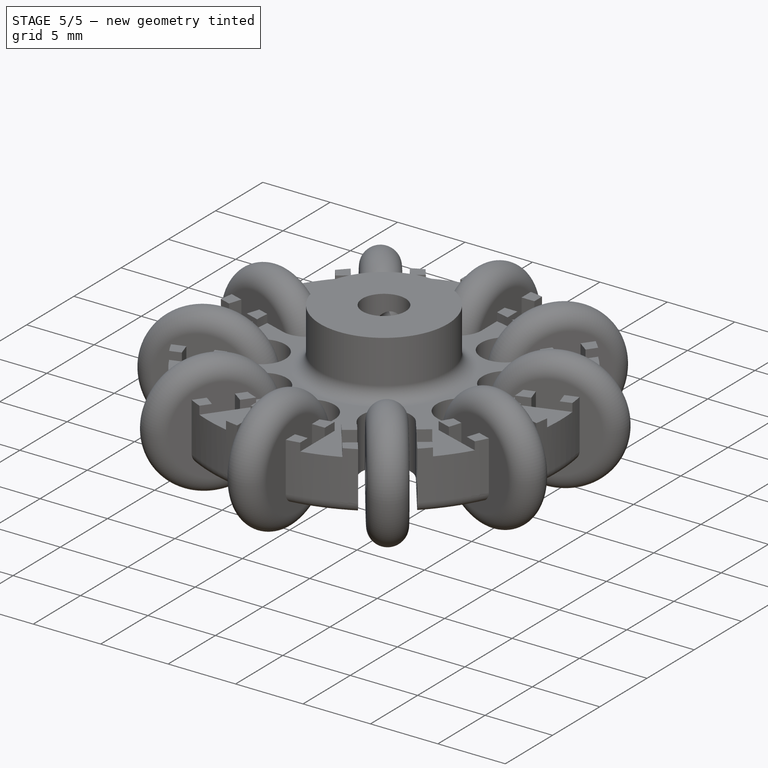
[diagram: stage 5 of 5 — iso view after this stage's code; geometry added in this stage tinted green]
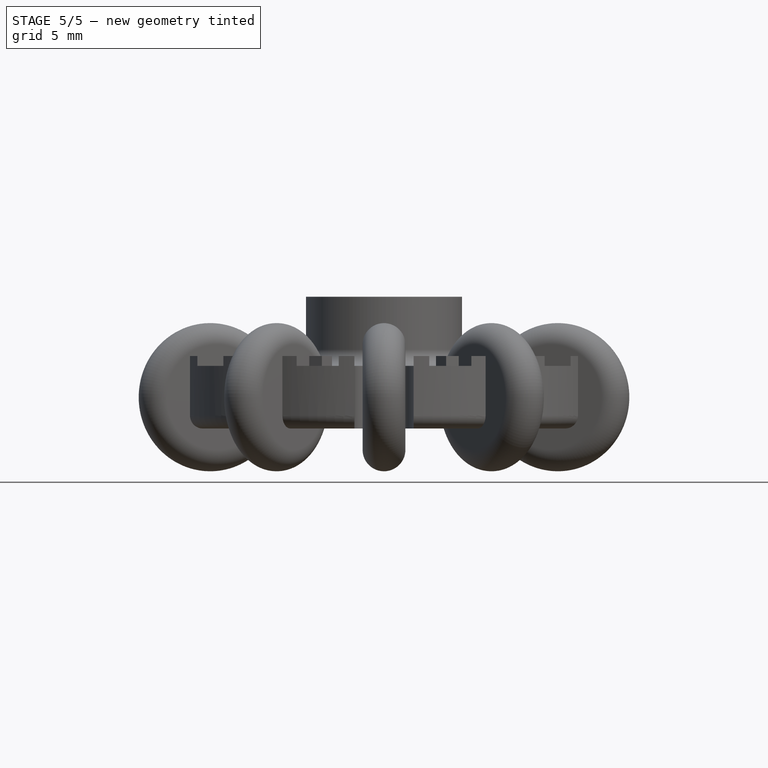
[diagram: stage 5 of 5 — front view after this stage's code; geometry added in this stage tinted green]
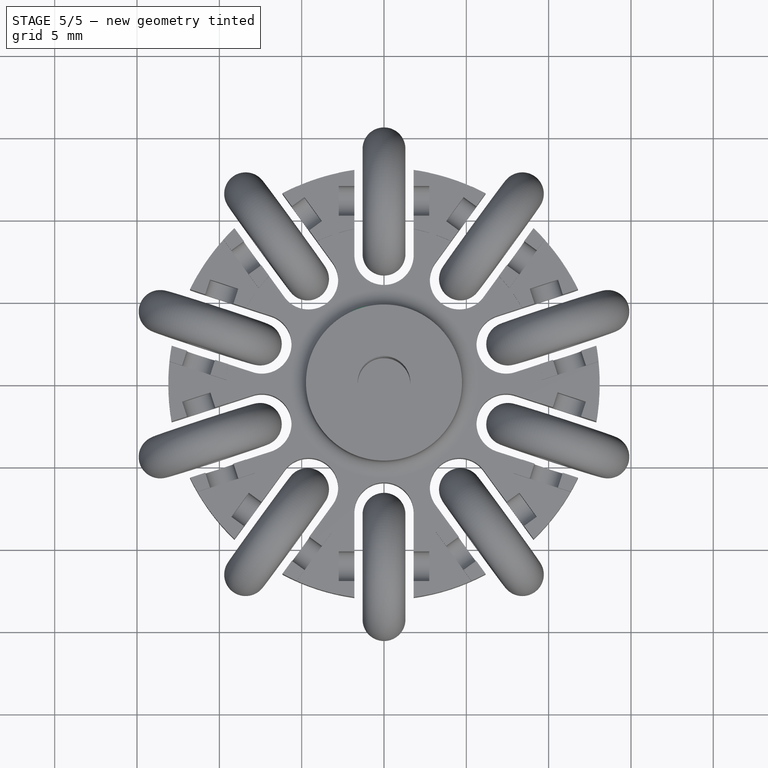
[diagram: stage 5 of 5 — top view after this stage's code; geometry added in this stage tinted green]
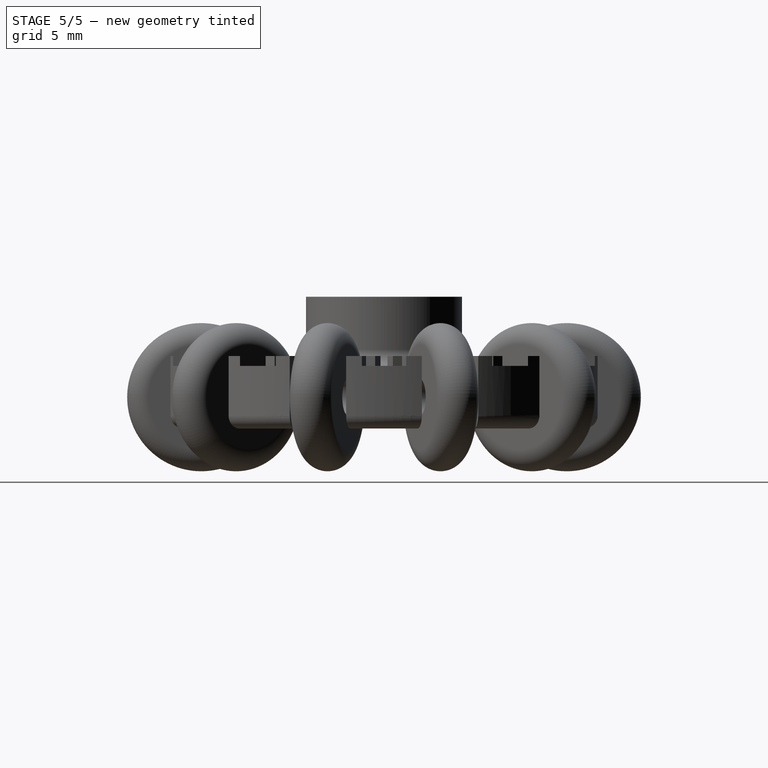
[diagram: stage 5 of 5 — right view after this stage's code; geometry added in this stage tinted green]
FEATURE [PartDesign::ShapeBinder] ShapeBinder001
  Support = -> [Sketch]
  TraceSupport = false
FEATURE [Sketcher::SketchObject] Sketch002
  ArcFitTolerance = 1e-06
  AttachmentSupport = -> [XY_Plane002]
  ExternalGeometry = -> [ShapeBinder001]
  FullyConstrained = false
  MakeInternals = false
  MapMode = 5
  sketch-geometry (7):
    g0: ArcOfCircle CenterX=0 CenterY=14.2992 CenterZ=0 NormalX=0 NormalY=0 NormalZ=1 AngleXU=0 Radius=1.3 StartAngle=0 EndAngle=3.14159
    g1: LineSegment [constr] StartX=-8.30036 StartY=19.7032 StartZ=0 EndX=13.3184 EndY=19.7032 EndZ=0
    g2: LineSegment [constr] StartX=0 StartY=14.2992 StartZ=0 EndX=-8.30036 EndY=19.7032 EndZ=0
    g3: LineSegment [constr] StartX=-8.30036 StartY=19.7032 StartZ=0 EndX=0.666606 EndY=15.4969 EndZ=0
    g4: LineSegment StartX=-1.3 StartY=14.2992 StartZ=0 EndX=-1.3 EndY=11.0992 EndZ=0
    g5: LineSegment StartX=-1.3 StartY=11.0992 StartZ=0 EndX=1.3 EndY=11.0992 EndZ=0
    g6: LineSegment StartX=1.3 StartY=11.0992 StartZ=0 EndX=1.3 EndY=14.2992 EndZ=0
  constraints (13):
    c: Coincident(g0,g-3)
    c: Horizontal(g1)
    c: Coincident(g2,g0)
    c: Coincident(g2,g1)
    c: Coincident(g3,g1)
    c: Equal(g2,g3)
    c: Tangent(g4,g0) = -1.5708
    c: Symmetric(g-5,g-5,g4)
    c: Coincident(g5,g4)
    c: Symmetric(g-4,g-4,g5)
    c: Coincident(g6,g5)
    c: Coincident(g6,g0)
    c: Coincident(g0,g-4)
FEATURE [PartDesign::Revolution] Revolution
  Angle = 360
  Angle2 = 60
  Axis = (1,0,0)
  Base = (-1.3,11.0992,0)
  Profile = -> Sketch002
  ReferenceAxis = -> Sketch002 [Edge3]
  Suppressed = false
  Type = 0
FEATURE [Sketcher::SketchObject] Sketch003
  ArcFitTolerance = 1e-06
  AttachmentSupport = -> [Revolution]
  ExternalGeometry = -> [Revolution]
  FullyConstrained = true
  MakeInternals = false
  MapMode = 5
  Placement = pos=(-1.3,0,0) rot=(0.57735,-0.57735,-0.57735;2.0944rad)
  expr: Constraints[1] = Spreadsheet.diametro_foro_ruotine
  sketch-geometry (1):
    g0: Circle CenterX=-11.0992 CenterY=0 CenterZ=0 NormalX=0 NormalY=0 NormalZ=1 AngleXU=0 Radius=1.1
  constraints (2):
    c: Coincident(g0,g-3)
    c: Diameter(g0) = 2.2
FEATURE [PartDesign::Pocket] Pocket
  BaseFeature = -> Revolution
  Direction = (1,0,0)
  Length = 5
  Length2 = 5
  Profile = -> Sketch003
  ReferenceAxis = -> Sketch003 [N_Axis]
  Suppressed = false
  Type = 1
FEATURE [PartDesign::Chamfer] Chamfer
  Angle = 45
  Base = -> Fillet001 [Edge366]
  BaseFeature = -> Fillet001
  ChamferType = 0
  FlipDirection = false
  Size = 0.6
  Size2 = 1
  SupportTransform = false
  Suppressed = false
  UseAllEdges = false
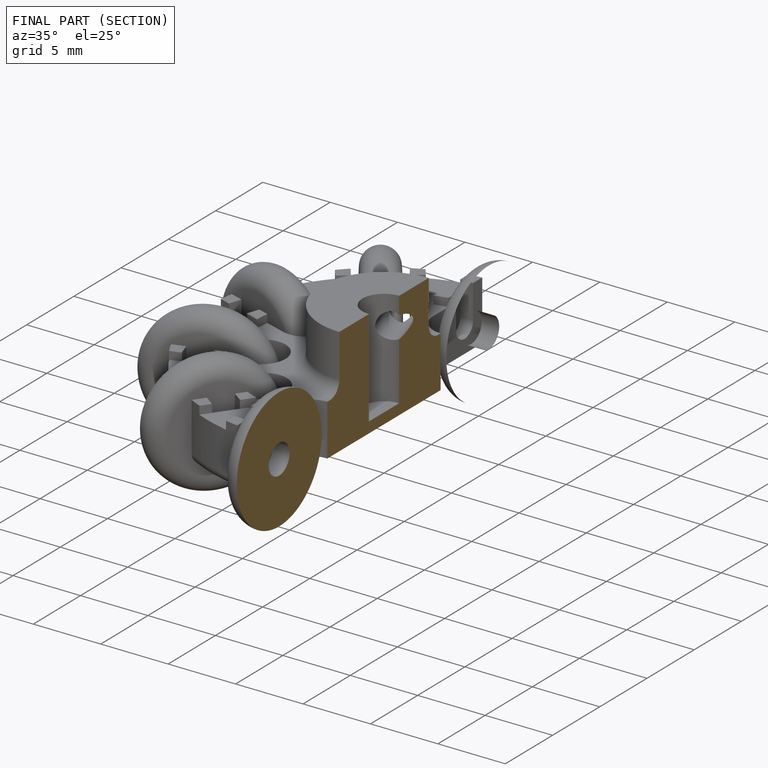
[diagram: finished part — half-section view (interior)]
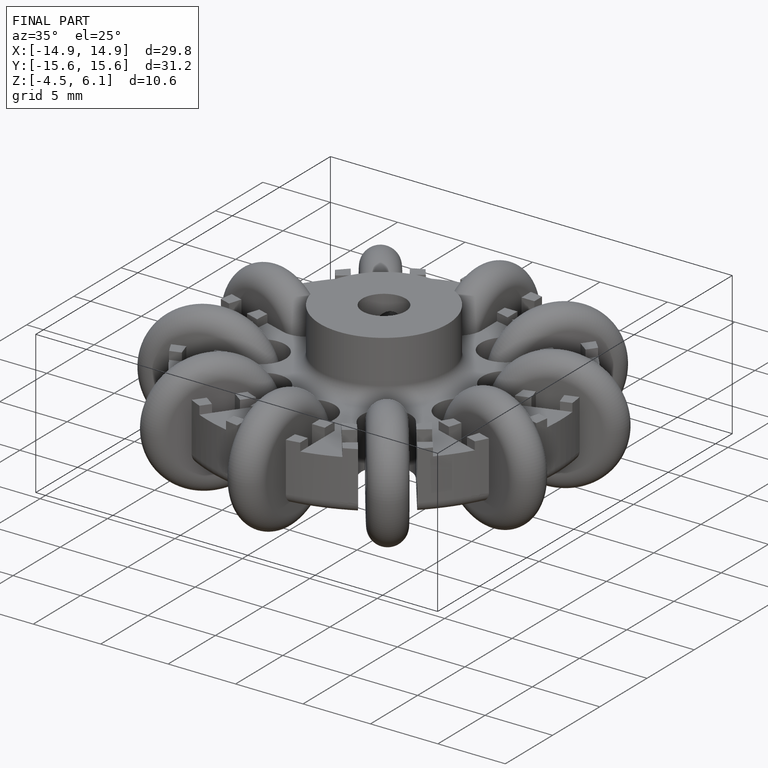
[diagram: finished part — iso view with bounding-box wireframe]
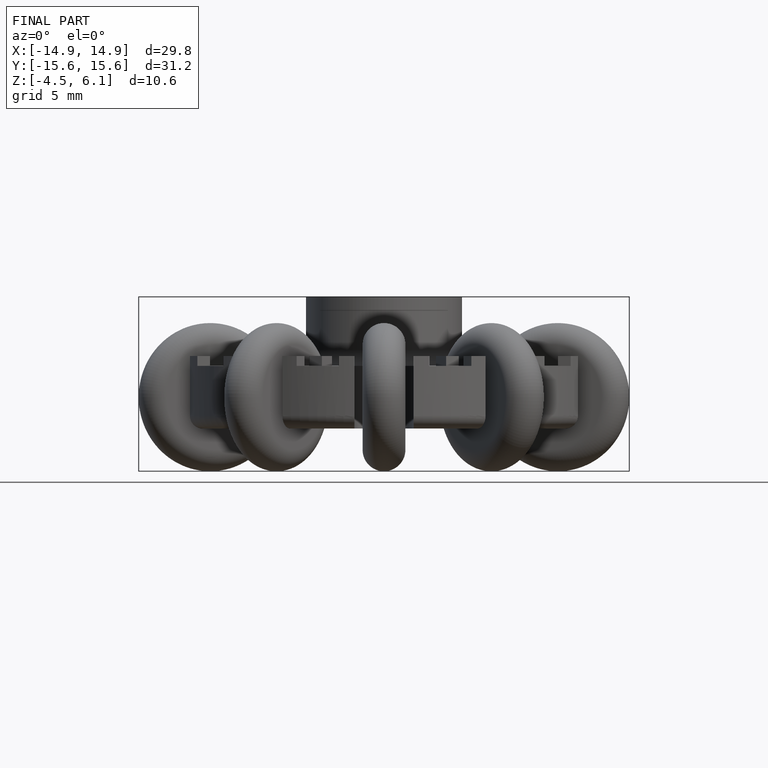
[diagram: finished part — front view with bounding-box wireframe]
